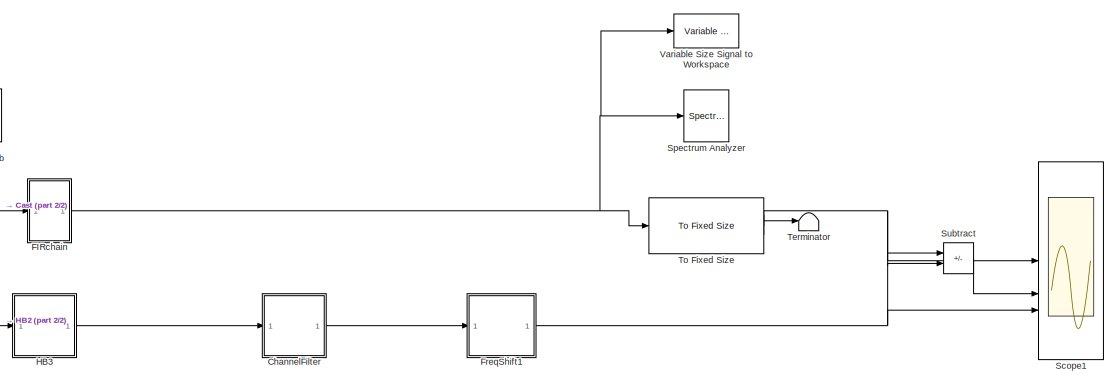
[diagram: root canvas - part 1/2, right side, full height]
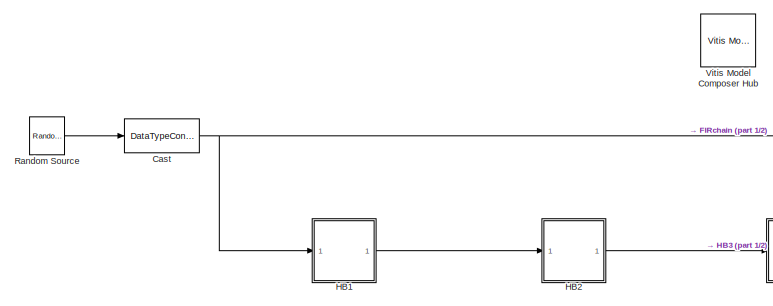
[diagram: root canvas - part 2/2, middle left region]
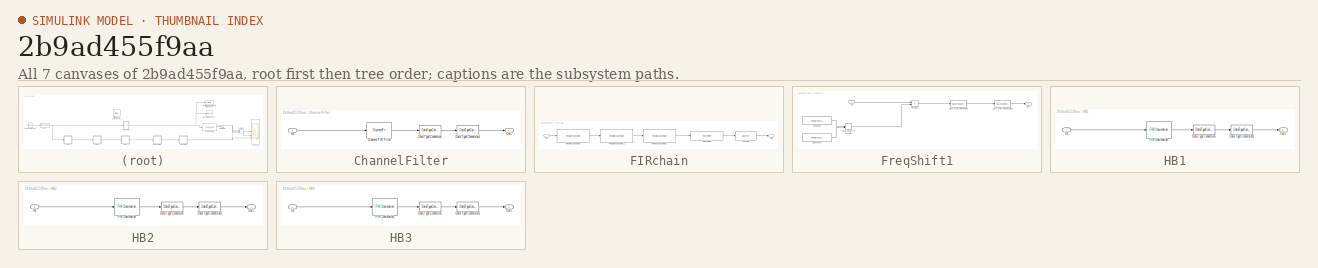
[diagram: thumbnail index - all 7 canvases of the model, root first then tree order]
MODEL slx_2b9ad455f9aa
KIND model
CONFIG AbsTol = auto
CONFIG EnableMultiTasking = off
CONFIG FixedStep = auto
CONFIG MaxStep = auto
CONFIG MinStep = auto
CONFIG RelTol = 1e-3
CONFIG SampleTimeConstraint = Unconstrained
CONFIG SolverName = VariableStepAuto
CONFIG StartTime = 0.0
CONFIG StopTime = 5000
BLOCK [DataTypeConversion] Cast
  OutDataTypeStr = int16
  RndMeth = Floor
  SaturateOnIntegerOverflow = off
BLOCK [SubSystem] ChannelFilter
BLOCK [DataTypeConversion] ChannelFilter/Data Type Conversion
  ConvertRealWorld = Stored Integer (SI)
  OutDataTypeStr = fixdt(1,32,Shift)
  RndMeth = Floor
  SaturateOnIntegerOverflow = off
BLOCK [DataTypeConversion] ChannelFilter/Data Type Conversion1
  OutDataTypeStr = int16
  RndMeth = Floor
BLOCK [DiscreteFir] ChannelFilter/Discrete FIR Filter
  Coefficients = COEFFS
  InputPortMap = u0
  InputProcessing = Columns as channels (frame based)
  OutputPortMap = o0
BLOCK [Inport] ChannelFilter/In1
BLOCK [Outport] ChannelFilter/Out1
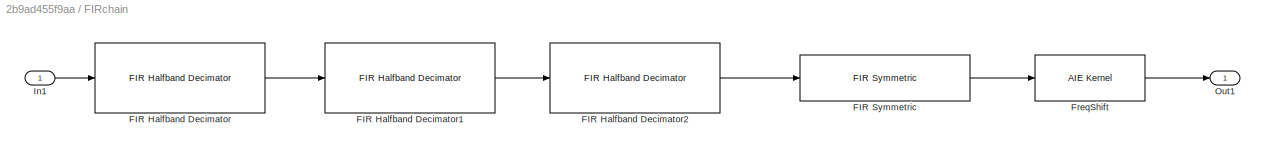
BLOCK [SubSystem] FIRchain
BLOCK [Reference] FIRchain/FIR Halfband Decimator  REF=aieDSP/FIR Halfband Decimator
  SourceBlock = aieDSP/FIR Halfband Decimator
  SourceType = FIR Halfband Decimator
BLOCK [Reference] FIRchain/FIR Halfband Decimator1  REF=aieDSP/FIR Halfband Decimator
  SourceBlock = aieDSP/FIR Halfband Decimator
  SourceType = FIR Halfband Decimator
BLOCK [Reference] FIRchain/FIR Halfband Decimator2  REF=aieDSP/FIR Halfband Decimator
  SourceBlock = aieDSP/FIR Halfband Decimator
  SourceType = FIR Halfband Decimator
BLOCK [Reference] FIRchain/FIR Symmetric  REF=aieDSP/FIR Symmetric
  SourceBlock = aieDSP/FIR Symmetric
  SourceType = FIR Symmetric
BLOCK [Reference] FIRchain/FreqShift  REF=aieBasic/AIE Kernel
  SourceBlock = aieBasic/AIE Kernel
  SourceType = AIE Kernel Function
BLOCK [Inport] FIRchain/In1
BLOCK [Outport] FIRchain/Out1
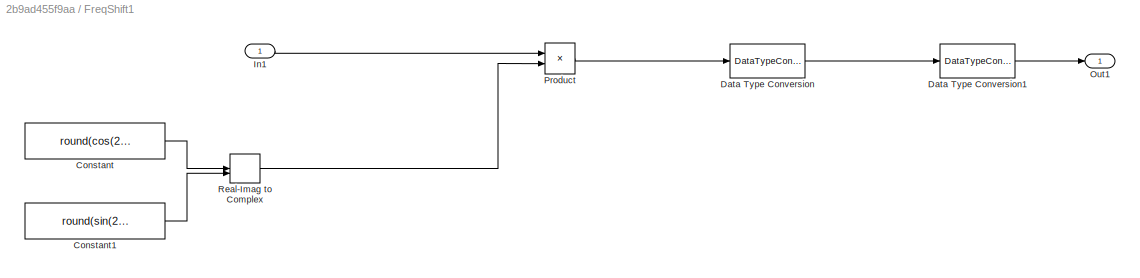
BLOCK [SubSystem] FreqShift1
BLOCK [Constant] FreqShift1/Constant
  SampleTime = 2048
  Value = round(cos(2*pi*[0:255]/8)*16384)
BLOCK [Constant] FreqShift1/Constant1
  SampleTime = 2048
  Value = round(sin(2*pi*[0:255]/8)*16384)
BLOCK [DataTypeConversion] FreqShift1/Data Type Conversion
  ConvertRealWorld = Stored Integer (SI)
  OutDataTypeStr = fixdt(1,32,14)
  RndMeth = Floor
  SaturateOnIntegerOverflow = off
BLOCK [DataTypeConversion] FreqShift1/Data Type Conversion1
  OutDataTypeStr = int16
  RndMeth = Floor
BLOCK [Inport] FreqShift1/In1
BLOCK [Outport] FreqShift1/Out1
BLOCK [Product] FreqShift1/Product
BLOCK [RealImagToComplex] FreqShift1/Real-Imag to Complex
BLOCK [SubSystem] HB1
BLOCK [DataTypeConversion] HB1/Data Type Conversion
  ConvertRealWorld = Stored Integer (SI)
  OutDataTypeStr = fixdt(1,32,Shift)
  RndMeth = Floor
  SaturateOnIntegerOverflow = off
BLOCK [DataTypeConversion] HB1/Data Type Conversion1
  OutDataTypeStr = int16
  RndMeth = Floor
BLOCK [Reference] HB1/FIR Decimation  REF=dspmlti4/FIR
Decimation
  SourceBlock = dspmlti4/FIR\nDecimation
  SourceType = FIR Decimation
  UserDataPersistent = on
BLOCK [Inport] HB1/In1
BLOCK [Outport] HB1/Out1
BLOCK [SubSystem] HB2
BLOCK [DataTypeConversion] HB2/Data Type Conversion
  ConvertRealWorld = Stored Integer (SI)
  OutDataTypeStr = fixdt(1,32,Shift)
  RndMeth = Floor
  SaturateOnIntegerOverflow = off
BLOCK [DataTypeConversion] HB2/Data Type Conversion1
  OutDataTypeStr = int16
  RndMeth = Floor
BLOCK [Reference] HB2/FIR Decimation  REF=dspmlti4/FIR
Decimation
  SourceBlock = dspmlti4/FIR\nDecimation
  SourceType = FIR Decimation
  UserDataPersistent = on
BLOCK [Inport] HB2/In1
BLOCK [Outport] HB2/Out1
BLOCK [SubSystem] HB3
BLOCK [DataTypeConversion] HB3/Data Type Conversion
  ConvertRealWorld = Stored Integer (SI)
  OutDataTypeStr = fixdt(1,32,Shift)
  RndMeth = Floor
  SaturateOnIntegerOverflow = off
BLOCK [DataTypeConversion] HB3/Data Type Conversion1
  OutDataTypeStr = int16
  RndMeth = Floor
BLOCK [Reference] HB3/FIR Decimation  REF=dspmlti4/FIR
Decimation
  SourceBlock = dspmlti4/FIR\nDecimation
  SourceType = FIR Decimation
  UserDataPersistent = on
BLOCK [Inport] HB3/In1
BLOCK [Outport] HB3/Out1
BLOCK [Reference] Random Source  REF=dspobslib/Random
Source
  SourceBlock = dspobslib/Random\nSource
  SourceType = Random Source Obsolete
  UserDataPersistent = on
BLOCK [Scope] Scope1
  Floating = off
  NumInputPorts = 3
  ScopeSpecificationString = Simulink.scopes.TimeScopeBlockCfg('CurrentConfiguration', extmgr.ConfigurationSet(extmgr.Configuration('Core','General UI',true,'DisplayFullSourceName',false,'ShowMainToolbar',true),extmgr.Configuration('Sources','WiredSimulink',true,'DataLogging',false,'DataLoggingVariableName','ScopeData','DataLoggingLimitDataPoints',false,'DataLoggingMaxPoints','5000','DataLoggingDecimateData',false,'DataLoggin...<+3583ch>
BLOCK [SpectrumAnalyzer] Spectrum Analyzer
  AllowFFTLengthLessThanSamplesPerUpdate = on
  AveragingMethod = Exponential
  ChannelNames = [""]
  DefaultConfigurationName = spbscopes.SpectrumAnalyzerBlockCfg
  GraphicalSettings = {"GraphicalSettings":{"SpectralMask":{"CustomReferenceLevel":"0","EnabledMasks":"None","LowerMask":"-Inf","MaskFrequencyOffset":"0","ReferenceLevel":"Custom","SelectedChannel":"1","UpperMask":"Inf"},"Style":{"AxesColor":"[0 0 0]","DefaultMarker":"none","DisplayName":"","LabelsColor":"[0.686274509803922 0.686274509803922 0.686274509803922]","Line":"1","LineColor":"[[1      0.9098     0.39216]]","Li...<+224ch>
  SampleRate = 0.125
  ScopeSpecificationString = spbscopes.SpectrumAnalyzerBlockCfg('CurrentConfiguration', extmgr.ConfigurationSet(extmgr.Configuration('Core','General UI',true,'FigureColor',[0.16        0.16        0.16]),extmgr.Configuration('Visuals','Spectrum',true,'Title','','YLabel','','MinYLim','32.3623','MaxYLim','86.1256','Legend',false,'AxesProperties',struct('XGrid',{'on','on'},'YGrid',{'on','on'},'ZGrid',{'on','on'},'Color',{[0 0 0]...<+2336ch>
  Span = 0.125
  StartFrequency = -0.0625
  StopFrequency = 0.0625
  Visible = on
  WasSavedAsWebScope = on
  WindowPosition = [236 135 808 450]
  YLimits = [32.3623,86.1256]
BLOCK [Sum] Subtract
  IconShape = rectangular
  Inputs = +-
BLOCK [Terminator] Terminator
BLOCK [Reference] To Fixed Size  REF=aieUtilities/To Fixed Size
  SourceBlock = aieUtilities/To Fixed Size
  SourceType = To Fixed Size
BLOCK [Reference] Variable Size Signal to Workspace  REF=aieUtilities/Variable Size Signal to Workspace
  SourceBlock = aieUtilities/Variable Size Signal to Workspace
  SourceType = Variable Size Signal to Workspace
BLOCK [Reference] Vitis Model Composer Hub  REF=vmcUtilities/Vitis Model Composer Hub
  SourceBlock = vmcUtilities/Vitis Model Composer Hub
  SourceType = VMC Hub
  Tag = genX
  UserDataPersistent = on
NET Cast:1 -> FIRchain:1, HB1:1
LINE ChannelFilter/Data Type Conversion1:1 -> ChannelFilter/Out1:1
LINE ChannelFilter/Data Type Conversion:1 -> ChannelFilter/Data Type Conversion1:1
LINE ChannelFilter/Discrete FIR Filter:1 -> ChannelFilter/Data Type Conversion:1
LINE ChannelFilter/In1:1 -> ChannelFilter/Discrete FIR Filter:1
LINE ChannelFilter:1 -> FreqShift1:1
LINE FIRchain/FIR Halfband Decimator1:1 -> FIRchain/FIR Halfband Decimator2:1
LINE FIRchain/FIR Halfband Decimator2:1 -> FIRchain/FIR Symmetric:1
LINE FIRchain/FIR Halfband Decimator:1 -> FIRchain/FIR Halfband Decimator1:1
LINE FIRchain/FIR Symmetric:1 -> FIRchain/FreqShift:1
LINE FIRchain/FreqShift:1 -> FIRchain/Out1:1
LINE FIRchain/In1:1 -> FIRchain/FIR Halfband Decimator:1
NET FIRchain:1 -> Spectrum Analyzer:1, To Fixed Size:1, Variable Size Signal to Workspace:1
LINE FreqShift1/Constant1:1 -> FreqShift1/Real-Imag to Complex:2
LINE FreqShift1/Constant:1 -> FreqShift1/Real-Imag to Complex:1
LINE FreqShift1/Data Type Conversion1:1 -> FreqShift1/Out1:1
LINE FreqShift1/Data Type Conversion:1 -> FreqShift1/Data Type Conversion1:1
LINE FreqShift1/In1:1 -> FreqShift1/Product:1
LINE FreqShift1/Product:1 -> FreqShift1/Data Type Conversion:1
LINE FreqShift1/Real-Imag to Complex:1 -> FreqShift1/Product:2
NET FreqShift1:1 -> Scope1:3, Subtract:2
LINE HB1/Data Type Conversion1:1 -> HB1/Out1:1
LINE HB1/Data Type Conversion:1 -> HB1/Data Type Conversion1:1
LINE HB1/FIR Decimation:1 -> HB1/Data Type Conversion:1
LINE HB1/In1:1 -> HB1/FIR Decimation:1
LINE HB1:1 -> HB2:1
LINE HB2/Data Type Conversion1:1 -> HB2/Out1:1
LINE HB2/Data Type Conversion:1 -> HB2/Data Type Conversion1:1
LINE HB2/FIR Decimation:1 -> HB2/Data Type Conversion:1
LINE HB2/In1:1 -> HB2/FIR Decimation:1
LINE HB2:1 -> HB3:1
LINE HB3/Data Type Conversion1:1 -> HB3/Out1:1
LINE HB3/Data Type Conversion:1 -> HB3/Data Type Conversion1:1
LINE HB3/FIR Decimation:1 -> HB3/Data Type Conversion:1
LINE HB3/In1:1 -> HB3/FIR Decimation:1
LINE HB3:1 -> ChannelFilter:1
LINE Random Source:1 -> Cast:1
LINE Subtract:1 -> Scope1:2
NET To Fixed Size:1 -> Scope1:1, Subtract:1
LINE To Fixed Size:2 -> Terminator:1
note: NET lines group one-source signal fan-out (src -> all destinations, sorted); 1:1 wires keep LINE
